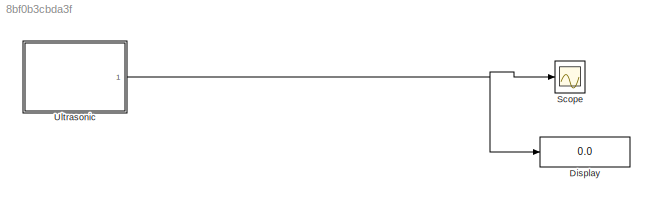
MODEL slx_8bf0b3cbda3f
KIND model
CONFIG AbsTol = auto
CONFIG FixedStep = auto
CONFIG MaxStep = auto
CONFIG MinStep = auto
CONFIG RelTol = 1e-3
CONFIG SampleTimeConstraint = Unconstrained
CONFIG Solver = FixedStepAuto
CONFIG SolverMode = Auto
CONFIG SolverName = FixedStepAuto
CONFIG StartTime = 0.0
CONFIG StopTime = 10.0
BLOCK [Display] Display
  Decimation = 1
  Ports = [1]
BLOCK [Scope] Scope
  Ports = [1]
  ScopeSpecificationString = Simulink.scopes.TimeScopeBlockCfg('CurrentConfiguration', extmgr.ConfigurationSet(extmgr.Configuration('Core','General UI',true),extmgr.Configuration('Core','Source UI',true),extmgr.Configuration('Sources','WiredSimulink',true),extmgr.Configuration('Visuals','Time Domain',true,'SerializedDisplays',{struct('MinYLimReal','-10.00000','MaxYLimReal','10.00000','YLabelReal','','MinYLimMag','0.00000','Ma...<+1398ch>
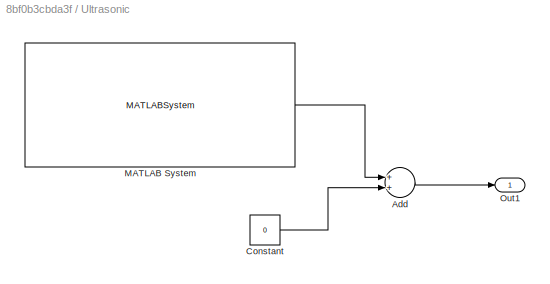
BLOCK [SubSystem] Ultrasonic
  Ports = [0, 1]
  RequestExecContextInheritance = off
  Variant = off
BLOCK [Sum] Ultrasonic/Add
  InputSameDT = off
  OutDataTypeStr = Inherit: Inherit via internal rule
  Ports = [2, 1]
  SaturateOnIntegerOverflow = off
BLOCK [Constant] Ultrasonic/Constant
  SampleTime = SampleTime
  Value = 0
BLOCK [MATLABSystem] Ultrasonic/MATLAB System
  MaskDisplay = disp('USSensor');\nport_label('output',1,'recordedDistance');
  MaskType = arduino.USSensor
  Ports = [0, 1]
  SimulateUsing = Interpreted execution
  System = arduino.USSensor
  pinNum = pinNum
  useInch = off
BLOCK [Outport] Ultrasonic/Out1
  IconDisplay = Port number
LINE Ultrasonic/Add:1 -> Ultrasonic/Out1:1
LINE Ultrasonic/Constant:1 -> Ultrasonic/Add:2
LINE Ultrasonic/MATLAB System:1 -> Ultrasonic/Add:1
NET Ultrasonic:1 -> Display:1, Scope:1
note: NET lines group one-source signal fan-out (src -> all destinations, sorted); 1:1 wires keep LINE
